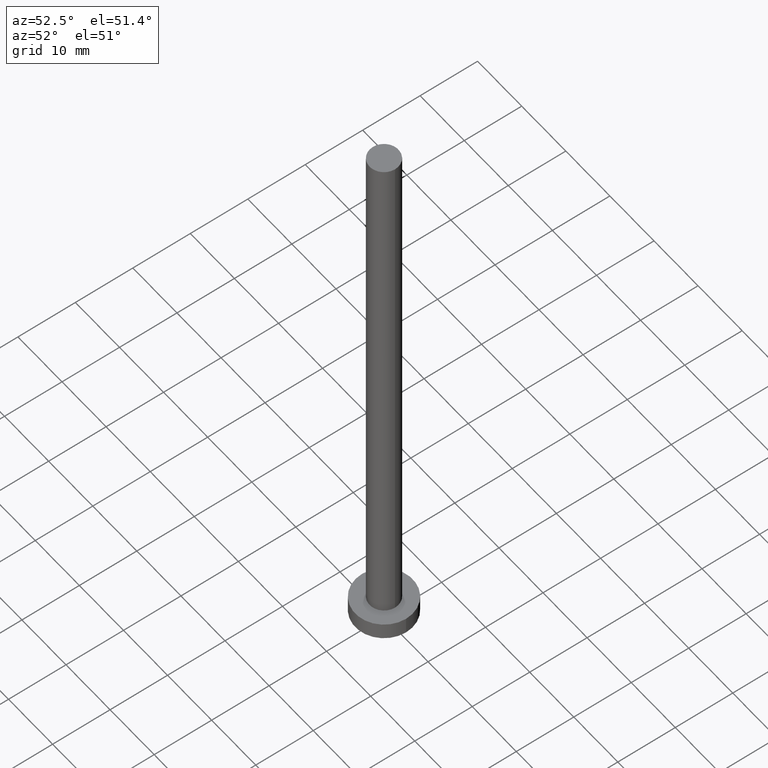
[diagram: clean part render]
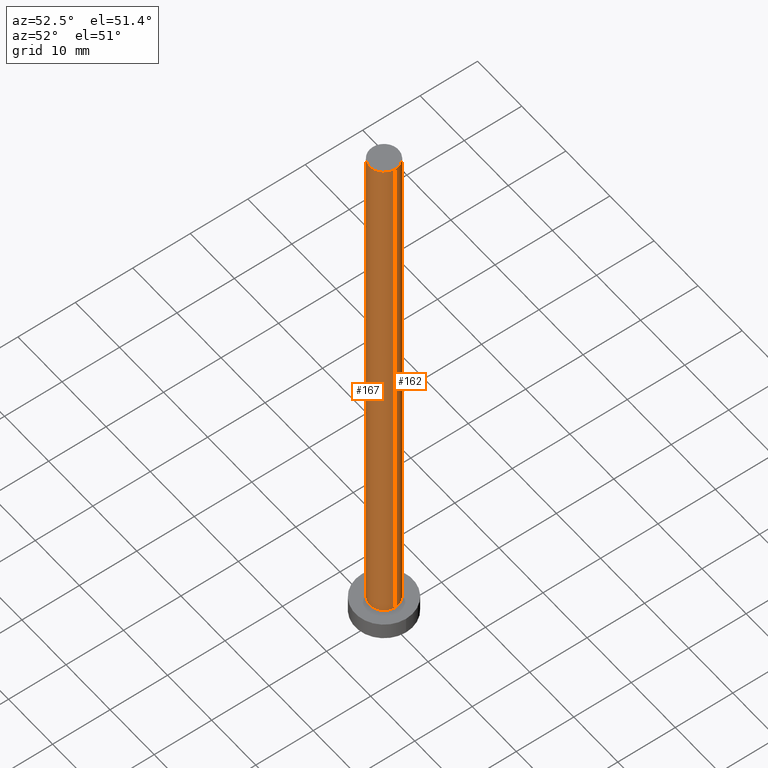
[diagram: same view with one multi-face feature highlighted, each face labeled with its STEP entity id]
A machine part, auxiliary view. The highlighted faces form ONE feature: a constant-radius fillet chain: 2 tangent blend faces with common blend radius 2.5 mm. The faces share edges in the B-rep.
Their STEP definitions:
[1] entity #167 (Cylinder):
#5 = AXIS2_PLACEMENT_3D ( 'NONE', #132, #152, #153 ) ;
#11 = DIRECTION ( 'NONE',  ( -0.000000000000000000, -0.000000000000000000, -1.000000000000000000 ) ) ;
#12 = VERTEX_POINT ( 'NONE', #169 ) ;
#24 = CIRCLE ( 'NONE', #5, 2.500000000000000000 ) ;
#29 = CARTESIAN_POINT ( 'NONE',  ( 2.500000000000000000, 3.061616997868382648E-16, 100.0000000000000000 ) ) ;
#31 = DIRECTION ( 'NONE',  ( -0.000000000000000000, -0.000000000000000000, -1.000000000000000000 ) ) ;
#32 = CARTESIAN_POINT ( 'NONE',  ( 2.500000000000000000, 3.061616997868382648E-16, 100.0000000000000000 ) ) ;
#33 = EDGE_CURVE ( 'NONE', #75, #72, #71, .T. ) ;
#41 = VECTOR ( 'NONE', #11, 1000.000000000000000 ) ;
#47 = EDGE_CURVE ( 'NONE', #177, #72, #64, .T. ) ;
#60 = EDGE_CURVE ( 'NONE', #12, #177, #95, .T. ) ;
#64 = CIRCLE ( 'NONE', #186, 2.500000000000000000 ) ;
#67 = ORIENTED_EDGE ( 'NONE', *, *, #60, .T. ) ;
#71 = LINE ( 'NONE', #29, #41 ) ;
#72 = VERTEX_POINT ( 'NONE', #225 ) ;
#75 = VERTEX_POINT ( 'NONE', #32 ) ;
#81 = CYLINDRICAL_SURFACE ( 'NONE', #187, 2.500000000000000000 ) ;
#88 = ORIENTED_EDGE ( 'NONE', *, *, #47, .T. ) ;
#90 = CARTESIAN_POINT ( 'NONE',  ( -2.500000000000000000, 0.000000000000000000, 3.000000000000000000 ) ) ;
#95 = LINE ( 'NONE', #205, #194 ) ;
#111 = ORIENTED_EDGE ( 'NONE', *, *, #33, .F. ) ;
#132 = CARTESIAN_POINT ( 'NONE',  ( 0.000000000000000000, 0.000000000000000000, 100.0000000000000000 ) ) ;
#136 = EDGE_LOOP ( 'NONE', ( #111, #213, #67, #88 ) ) ;
#141 = CARTESIAN_POINT ( 'NONE',  ( 0.000000000000000000, 0.000000000000000000, 3.000000000000000000 ) ) ;
#143 = DIRECTION ( 'NONE',  ( 0.000000000000000000, 0.000000000000000000, 1.000000000000000000 ) ) ;
#146 = CARTESIAN_POINT ( 'NONE',  ( 0.000000000000000000, 0.000000000000000000, 100.0000000000000000 ) ) ;
#152 = DIRECTION ( 'NONE',  ( 0.000000000000000000, 0.000000000000000000, 1.000000000000000000 ) ) ;
#153 = DIRECTION ( 'NONE',  ( 1.000000000000000000, 0.000000000000000000, 0.000000000000000000 ) ) ;
#165 = DIRECTION ( 'NONE',  ( -1.000000000000000000, 0.000000000000000000, 0.000000000000000000 ) ) ;
#167 = ADVANCED_FACE ( 'NONE', ( #210 ), #81, .T. ) ;
#169 = CARTESIAN_POINT ( 'NONE',  ( -2.500000000000000000, 0.000000000000000000, 100.0000000000000000 ) ) ;
#177 = VERTEX_POINT ( 'NONE', #90 ) ;
#186 = AXIS2_PLACEMENT_3D ( 'NONE', #141, #143, #207 ) ;
#187 = AXIS2_PLACEMENT_3D ( 'NONE', #146, #31, #165 ) ;
#194 = VECTOR ( 'NONE', #248, 1000.000000000000000 ) ;
#205 = CARTESIAN_POINT ( 'NONE',  ( -2.500000000000000000, 0.000000000000000000, 100.0000000000000000 ) ) ;
#207 = DIRECTION ( 'NONE',  ( 1.000000000000000000, 0.000000000000000000, 0.000000000000000000 ) ) ;
#210 = FACE_OUTER_BOUND ( 'NONE', #136, .T. ) ;
#213 = ORIENTED_EDGE ( 'NONE', *, *, #232, .F. ) ;
#225 = CARTESIAN_POINT ( 'NONE',  ( 2.500000000000000000, 3.061616997868382648E-16, 3.000000000000000000 ) ) ;
#232 = EDGE_CURVE ( 'NONE', #12, #75, #24, .T. ) ;
#248 = DIRECTION ( 'NONE',  ( -0.000000000000000000, -0.000000000000000000, -1.000000000000000000 ) ) ;
[2] entity #162 (Cylinder):
#3 = CYLINDRICAL_SURFACE ( 'NONE', #50, 2.500000000000000000 ) ;
#7 = ORIENTED_EDGE ( 'NONE', *, *, #60, .F. ) ;
#11 = DIRECTION ( 'NONE',  ( -0.000000000000000000, -0.000000000000000000, -1.000000000000000000 ) ) ;
#12 = VERTEX_POINT ( 'NONE', #169 ) ;
#29 = CARTESIAN_POINT ( 'NONE',  ( 2.500000000000000000, 3.061616997868382648E-16, 100.0000000000000000 ) ) ;
#32 = CARTESIAN_POINT ( 'NONE',  ( 2.500000000000000000, 3.061616997868382648E-16, 100.0000000000000000 ) ) ;
#33 = EDGE_CURVE ( 'NONE', #75, #72, #71, .T. ) ;
#37 = CARTESIAN_POINT ( 'NONE',  ( 0.000000000000000000, 0.000000000000000000, 100.0000000000000000 ) ) ;
#41 = VECTOR ( 'NONE', #11, 1000.000000000000000 ) ;
#50 = AXIS2_PLACEMENT_3D ( 'NONE', #37, #54, #142 ) ;
#54 = DIRECTION ( 'NONE',  ( -0.000000000000000000, -0.000000000000000000, -1.000000000000000000 ) ) ;
#56 = FACE_OUTER_BOUND ( 'NONE', #201, .T. ) ;
#60 = EDGE_CURVE ( 'NONE', #12, #177, #95, .T. ) ;
#61 = ORIENTED_EDGE ( 'NONE', *, *, #33, .T. ) ;
#71 = LINE ( 'NONE', #29, #41 ) ;
#72 = VERTEX_POINT ( 'NONE', #225 ) ;
#75 = VERTEX_POINT ( 'NONE', #32 ) ;
#78 = AXIS2_PLACEMENT_3D ( 'NONE', #129, #126, #231 ) ;
#89 = EDGE_CURVE ( 'NONE', #72, #177, #218, .T. ) ;
#90 = CARTESIAN_POINT ( 'NONE',  ( -2.500000000000000000, 0.000000000000000000, 3.000000000000000000 ) ) ;
#95 = LINE ( 'NONE', #205, #194 ) ;
#115 = EDGE_CURVE ( 'NONE', #75, #12, #241, .T. ) ;
#121 = DIRECTION ( 'NONE',  ( 0.000000000000000000, 0.000000000000000000, 1.000000000000000000 ) ) ;
#126 = DIRECTION ( 'NONE',  ( 0.000000000000000000, 0.000000000000000000, 1.000000000000000000 ) ) ;
#129 = CARTESIAN_POINT ( 'NONE',  ( 0.000000000000000000, 0.000000000000000000, 100.0000000000000000 ) ) ;
#142 = DIRECTION ( 'NONE',  ( -1.000000000000000000, 0.000000000000000000, 0.000000000000000000 ) ) ;
#156 = ORIENTED_EDGE ( 'NONE', *, *, #89, .T. ) ;
#162 = ADVANCED_FACE ( 'NONE', ( #56 ), #3, .T. ) ;
#169 = CARTESIAN_POINT ( 'NONE',  ( -2.500000000000000000, 0.000000000000000000, 100.0000000000000000 ) ) ;
#172 = ORIENTED_EDGE ( 'NONE', *, *, #115, .F. ) ;
#177 = VERTEX_POINT ( 'NONE', #90 ) ;
#191 = CARTESIAN_POINT ( 'NONE',  ( 0.000000000000000000, 0.000000000000000000, 3.000000000000000000 ) ) ;
#194 = VECTOR ( 'NONE', #248, 1000.000000000000000 ) ;
#201 = EDGE_LOOP ( 'NONE', ( #172, #61, #156, #7 ) ) ;
#205 = CARTESIAN_POINT ( 'NONE',  ( -2.500000000000000000, 0.000000000000000000, 100.0000000000000000 ) ) ;
#218 = CIRCLE ( 'NONE', #223, 2.500000000000000000 ) ;
#223 = AXIS2_PLACEMENT_3D ( 'NONE', #191, #121, #227 ) ;
#225 = CARTESIAN_POINT ( 'NONE',  ( 2.500000000000000000, 3.061616997868382648E-16, 3.000000000000000000 ) ) ;
#227 = DIRECTION ( 'NONE',  ( 1.000000000000000000, 0.000000000000000000, 0.000000000000000000 ) ) ;
#231 = DIRECTION ( 'NONE',  ( 1.000000000000000000, 0.000000000000000000, 0.000000000000000000 ) ) ;
#241 = CIRCLE ( 'NONE', #78, 2.500000000000000000 ) ;
#248 = DIRECTION ( 'NONE',  ( -0.000000000000000000, -0.000000000000000000, -1.000000000000000000 ) ) ;